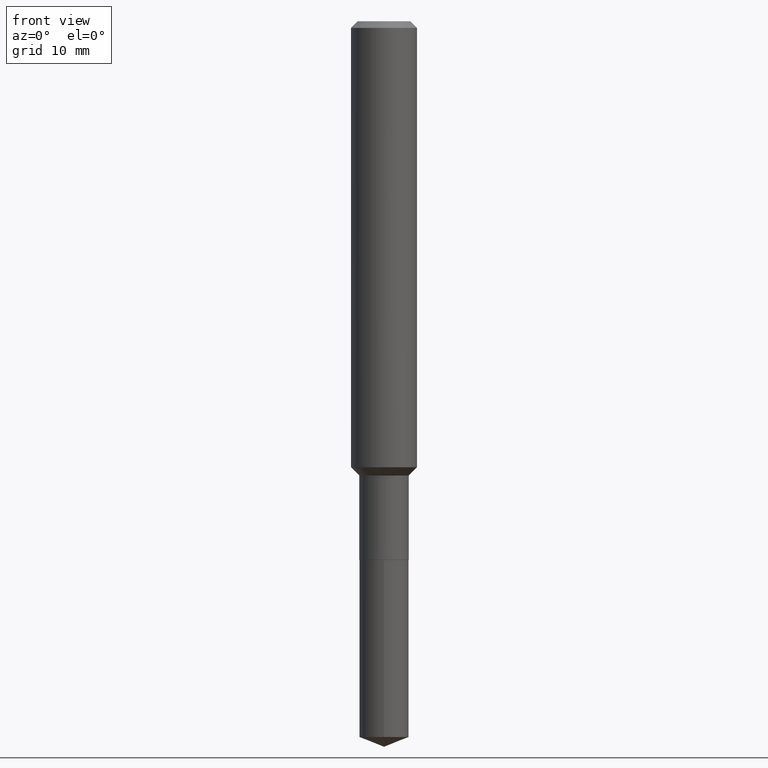
[diagram: clean part render]
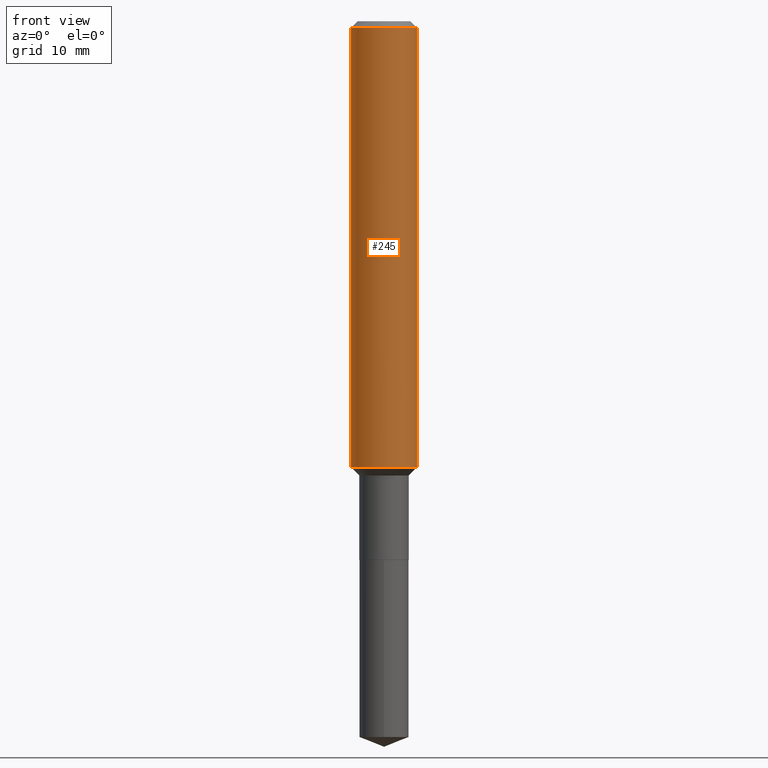
[diagram: same view with one face highlighted and labeled with its STEP entity id]
A machine part, front view. The second image highlights one B-rep face of the part: STEP entity #245.
In plain terms, the highlighted cylindrical surface (edge-blend (fillet) strip) has radius 2.9997 mm, axis along (-0, 0, 1).
Its self-contained STEP definition (entity closure, byte-faithful):
#4 = AXIS2_PLACEMENT_3D ( 'NONE', #26, #402, #298 ) ;
#8 = EDGE_CURVE ( 'NONE', #422, #332, #333, .T. ) ;
#14 = CARTESIAN_POINT ( 'NONE',  ( 5.776197320209327532E-31, -8.246878922347559293E-17, -0.02362000000000014088 ) ) ;
#26 = CARTESIAN_POINT ( 'NONE',  ( 3.906391871000136996E-29, -5.577292290668039694E-15, -1.597399999999999709 ) ) ;
#30 = CYLINDRICAL_SURFACE ( 'NONE', #325, 0.1181000000000001077 ) ;
#31 = DIRECTION ( 'NONE',  ( 1.000000000000000000, -6.982962677686266711E-15, 4.876176775795935793E-29 ) ) ;
#71 = CARTESIAN_POINT ( 'NONE',  ( -0.1181000000000001077, 8.391509709326790846E-16, -5.809262341591049389E-30 ) ) ;
#79 = EDGE_LOOP ( 'NONE', ( #317, #391, #87, #274 ) ) ;
#87 = ORIENTED_EDGE ( 'NONE', *, *, #327, .T. ) ;
#167 = VECTOR ( 'NONE', #456, 39.37007874015748143 ) ;
#169 = DIRECTION ( 'NONE',  ( 1.000000000000000000, -6.982962677686266711E-15, 0.000000000000000000 ) ) ;
#186 = CARTESIAN_POINT ( 'NONE',  ( 0.1180999999999999966, -9.071566814582237199E-16, -0.02362000000000014088 ) ) ;
#192 = EDGE_CURVE ( 'NONE', #422, #279, #248, .T. ) ;
#196 = CARTESIAN_POINT ( 'NONE',  ( 0.1181000000000001909, -6.401980182902788745E-15, -1.597399999999999709 ) ) ;
#214 = VERTEX_POINT ( 'NONE', #186 ) ;
#218 = LINE ( 'NONE', #263, #304 ) ;
#245 = ADVANCED_FACE ( 'NONE', ( #485 ), #30, .T. ) ;
#248 = LINE ( 'NONE', #71, #167 ) ;
#257 = CARTESIAN_POINT ( 'NONE',  ( 0.000000000000000000, 0.000000000000000000, 0.000000000000000000 ) ) ;
#263 = CARTESIAN_POINT ( 'NONE',  ( 0.1181000000000001077, -8.246878922347488542E-16, 5.758764772215005345E-30 ) ) ;
#274 = ORIENTED_EDGE ( 'NONE', *, *, #429, .F. ) ;
#279 = VERTEX_POINT ( 'NONE', #414 ) ;
#298 = DIRECTION ( 'NONE',  ( 1.000000000000000000, -6.982962677686269077E-15, 0.000000000000000000 ) ) ;
#304 = VECTOR ( 'NONE', #372, 39.37007874015748143 ) ;
#317 = ORIENTED_EDGE ( 'NONE', *, *, #192, .F. ) ;
#325 = AXIS2_PLACEMENT_3D ( 'NONE', #257, #341, #31 ) ;
#327 = EDGE_CURVE ( 'NONE', #332, #214, #218, .T. ) ;
#332 = VERTEX_POINT ( 'NONE', #196 ) ;
#333 = CIRCLE ( 'NONE', #4, 0.1181000000000001909 ) ;
#341 = DIRECTION ( 'NONE',  ( -2.445468806185136597E-29, 3.491481338843145583E-15, 1.000000000000000000 ) ) ;
#350 = CARTESIAN_POINT ( 'NONE',  ( -0.1181000000000001909, -4.738141319735359130E-15, -1.597399999999999709 ) ) ;
#352 = DIRECTION ( 'NONE',  ( -2.445468806185136597E-29, 3.491481338843145583E-15, 1.000000000000000000 ) ) ;
#372 = DIRECTION ( 'NONE',  ( -2.445468806185136877E-29, 3.491481338843145188E-15, 1.000000000000000000 ) ) ;
#391 = ORIENTED_EDGE ( 'NONE', *, *, #8, .T. ) ;
#402 = DIRECTION ( 'NONE',  ( -2.445468806185136597E-29, 3.491481338843145583E-15, 1.000000000000000000 ) ) ;
#414 = CARTESIAN_POINT ( 'NONE',  ( -0.1180999999999999966, -1.990729569013078195E-15, -0.02362000000000014088 ) ) ;
#422 = VERTEX_POINT ( 'NONE', #350 ) ;
#429 = EDGE_CURVE ( 'NONE', #279, #214, #453, .T. ) ;
#453 = CIRCLE ( 'NONE', #474, 0.1180999999999999966 ) ;
#456 = DIRECTION ( 'NONE',  ( -2.445468806185136877E-29, 3.491481338843145188E-15, 1.000000000000000000 ) ) ;
#474 = AXIS2_PLACEMENT_3D ( 'NONE', #14, #352, #169 ) ;
#485 = FACE_OUTER_BOUND ( 'NONE', #79, .T. ) ;